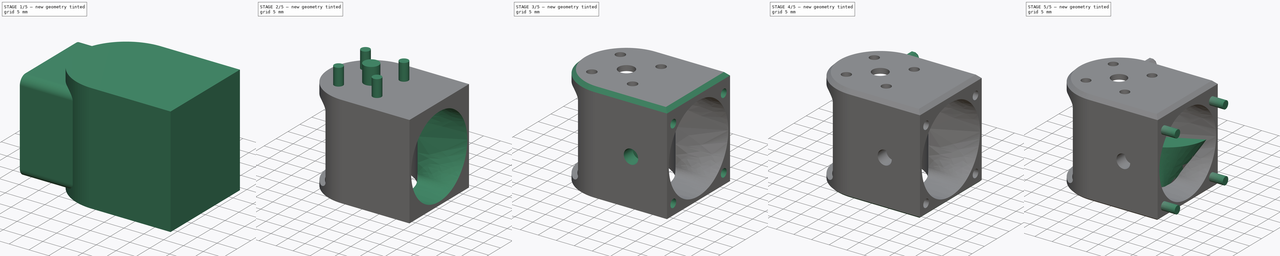
[diagram: build sequence overview — one tinted view per stage of 5, left to right]
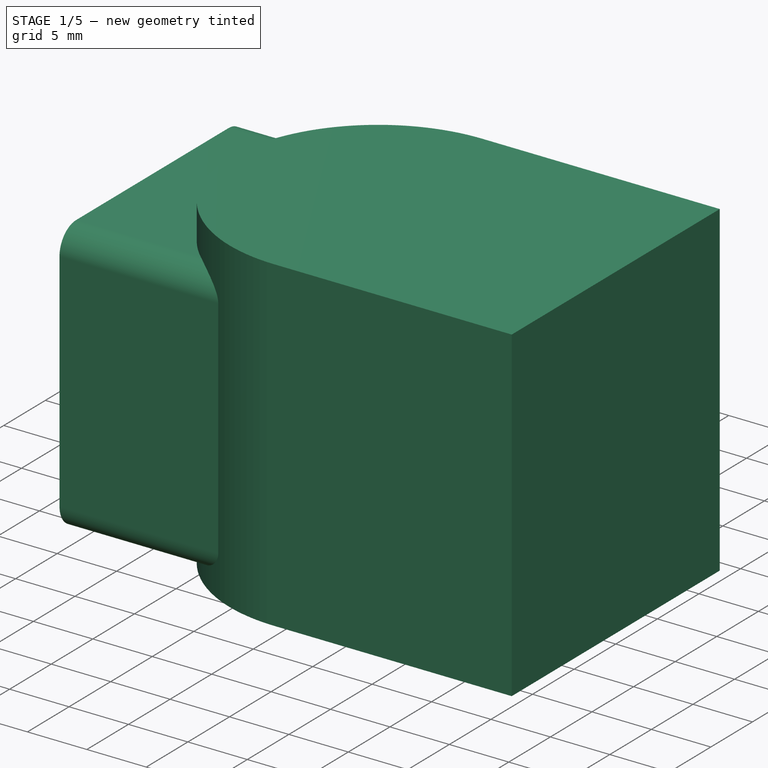
[diagram: stage 1 of 5 — iso view after this stage's code; geometry added in this stage tinted green]
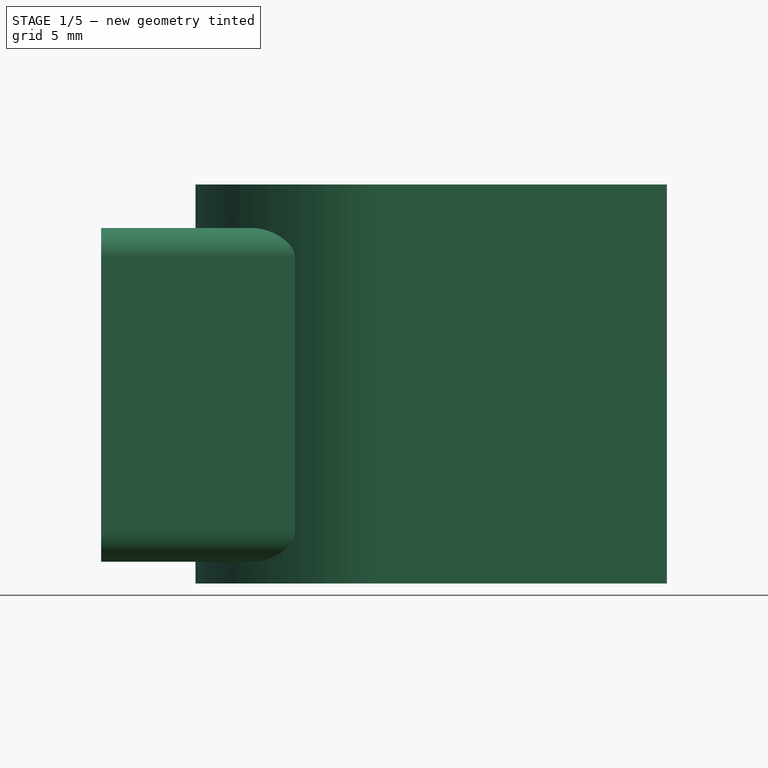
[diagram: stage 1 of 5 — front view after this stage's code; geometry added in this stage tinted green]
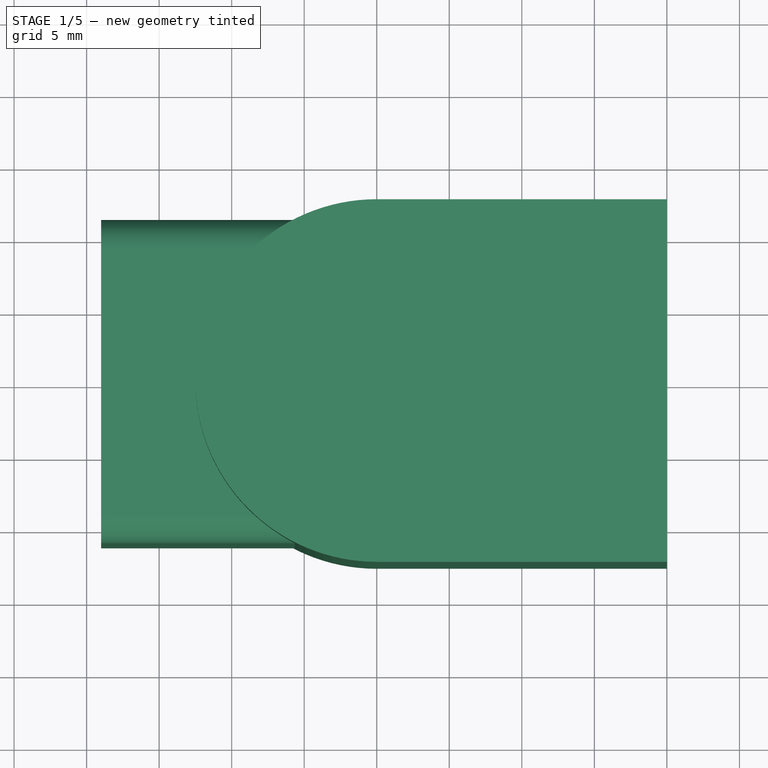
[diagram: stage 1 of 5 — top view after this stage's code; geometry added in this stage tinted green]
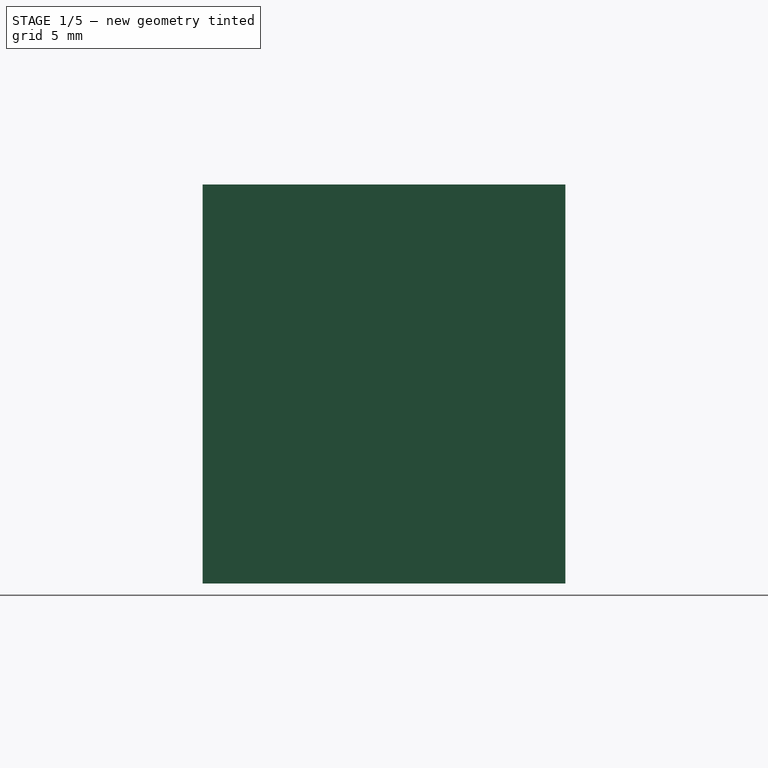
[diagram: stage 1 of 5 — right view after this stage's code; geometry added in this stage tinted green]
FCSTD DOCUMENT  (FreeCAD 0.18R16146 (Git))
Label: dragon-2510-adapter
License: All rights reserved
LicenseURL: http://en.wikipedia.org/wiki/All_rights_reserved
objects: Part::Cylinder×14, Part::Feature×6, Part::Cut×6, Part::MultiFuse×5, Part::Chamfer×4, Part::Box×3, Sketcher::SketchObject×2, PartDesign::AdditiveLoft×1, PartDesign::Body×1, Part::Fillet×1
note: 44 computed .brp shape members not serialized (recipe doc carries the construction recipe); baked Part::Feature solids carry a one-line shape summary decoded from their .brp

FEATURE [Part::Cylinder] Cylinder
  Angle = 360
  AttacherType = Attacher::AttachEngine3D
  Height = 27.5
  Radius = 12.5
FEATURE [Sketcher::SketchObject] Sketch
  MapMode = 5
  Support = -> [XY_Plane]
  sketch-geometry (12):
    g0: LineSegment [constr] StartX=0 StartY=0 StartZ=0 EndX=12 EndY=0 EndZ=0
    g1: LineSegment [constr] StartX=12 StartY=0 StartZ=0 EndX=12 EndY=23 EndZ=0
    g2: LineSegment [constr] StartX=12 StartY=23 StartZ=0 EndX=0 EndY=23 EndZ=0
    g3: LineSegment [constr] StartX=0 StartY=23 StartZ=0 EndX=0 EndY=0 EndZ=0
    g4: ArcOfCircle CenterX=2.01222 CenterY=21.0274 CenterZ=0 NormalX=0 NormalY=0 NormalZ=1 AngleXU=0 Radius=1.97307 StartAngle=1.57699 EndAngle=3.15549
    g5: ArcOfCircle CenterX=10.0122 CenterY=21.0018 CenterZ=0 NormalX=0 NormalY=0 NormalZ=1 AngleXU=0 Radius=2 StartAngle=6.28228 EndAngle=7.86009
    g6: ArcOfCircle CenterX=2 CenterY=2.02741 CenterZ=0 NormalX=0 NormalY=0 NormalZ=1 AngleXU=0 Radius=2 StartAngle=3.30087 EndAngle=4.64363
    g7: ArcOfCircle CenterX=10 CenterY=2.00181 CenterZ=0 NormalX=0 NormalY=0 NormalZ=1 AngleXU=0 Radius=2 StartAngle=4.64363 EndAngle=6.28228
    g8: LineSegment StartX=2 StartY=23.0004 StartZ=0 EndX=10 EndY=23.0018 EndZ=0
    g9: LineSegment StartX=0.0393357 StartY=21 StartZ=0 EndX=0.0253145 EndY=1.71021 EndZ=0
    g10: LineSegment StartX=1.86259 StartY=0.0321397 StartZ=0 EndX=9.86259 EndY=0.00654089 EndZ=0
    g11: LineSegment StartX=12 StartY=2 StartZ=0 EndX=12.0122 EndY=21 EndZ=0
  constraints (25):
    c: Coincident(g0,g1)
    c: Coincident(g1,g2)
    c: Coincident(g2,g3)
    c: Coincident(g3,g0)
    c: Horizontal(g0)
    c: Horizontal(g2)
    c: Vertical(g1)
    c: Vertical(g3)
    c: DistanceX(g4,g5) = 8
    c: DistanceY(g6,g4) = 19
    c: DistanceX(g-1,g6) = 2
    c: DistanceX(g6,g7) = 8
    c: DistanceY(g7,g5) = 19
    c: Coincident(g4,g8)
    c: Coincident(g8,g5)
    c: Coincident(g4,g9)
    c: Coincident(g9,g6)
    c: Coincident(g10,g6)
    c: Coincident(g10,g7)
    c: Coincident(g11,g7)
    c: Coincident(g5,g11)
    c: Radius(g5) = 2
    c: Radius(g6) = 2
    c: Radius(g7) = 2
    c: DistanceX(g6,g7) = 8
FEATURE [Sketcher::SketchObject] Sketch001
  AttachmentOffset = pos=(0,0,12) rot=(0,0,1;0rad)
  MapMode = 5
  Placement = pos=(0,0,12) rot=(0,0,1;0rad)
  Support = -> [XY_Plane]
  sketch-geometry (3):
    g0: LineSegment [constr] StartX=0 StartY=21 StartZ=0 EndX=14 EndY=2 EndZ=0
    g1: LineSegment [constr] StartX=0 StartY=2 StartZ=0 EndX=14 EndY=21 EndZ=0
    g2: Circle CenterX=6 CenterY=11.5 CenterZ=0 NormalX=0 NormalY=0 NormalZ=1 AngleXU=0 Radius=12
  constraints (1):
    c: DistanceX(g-1,g2) = 6
FEATURE [Part::Cylinder] Cylinder001
  Angle = 360
  AttacherType = Attacher::AttachEngine3D
  Height = 26
  Radius = 11.15
FEATURE [Part::Box] Box  label="Cube"
  AttacherType = Attacher::AttachEngine3D
  Height = 27.5
  Length = 20
  Placement = pos=(0,-12.5,0) rot=(0,0,1;0rad)
  Width = 25
FEATURE [Part::Box] Box001  label="Cube001"
  AttacherType = Attacher::AttachEngine3D
  Height = 23
  Length = 19
  Placement = pos=(-19,-11.15,1.5) rot=(0,0,1;0rad)
  Width = 22.3
FEATURE [PartDesign::Body] Body
  Group = -> [Sketch,Sketch001,AdditiveLoft]
  Origin = -> Origin
  Tip = -> AdditiveLoft
FEATURE [Part::Feature] Body001001  label="Body002"
  Placement = pos=(8.4,-3e-15,13) rot=(0.57735,0.57735,0.57735;2.0944rad)
  shape: bbox 12 x 24.72 x 24.27 mm, 11 faces (baked)
FEATURE [Part::Feature] Cut001002  label="Cut003004"
  shape: bbox 20.4 x 25.22 x 27.5 mm, 16 faces (baked)
FEATURE [Part::MultiFuse] Fusion
  Shapes = -> [Cylinder,Box]
FEATURE [Part::Cut] Cut
  Base = -> Fusion
  Tool = -> Cylinder001
FEATURE [Part::Feature] Fusion036012039011002025018003  label="_dragon-hotend-pref"
  Placement = pos=(0,0,-19.5) rot=(0.57735,0.57735,0.57735;2.0944rad)
  shape: bbox 22.21 x 26.11 x 45.51 mm, 390 faces, 3 solids (baked)
FEATURE [Part::Fillet] Fillet
  Base = -> Box001
  Edges = 4 edges r=2: [Edge9,Edge10,Edge11,Edge12]
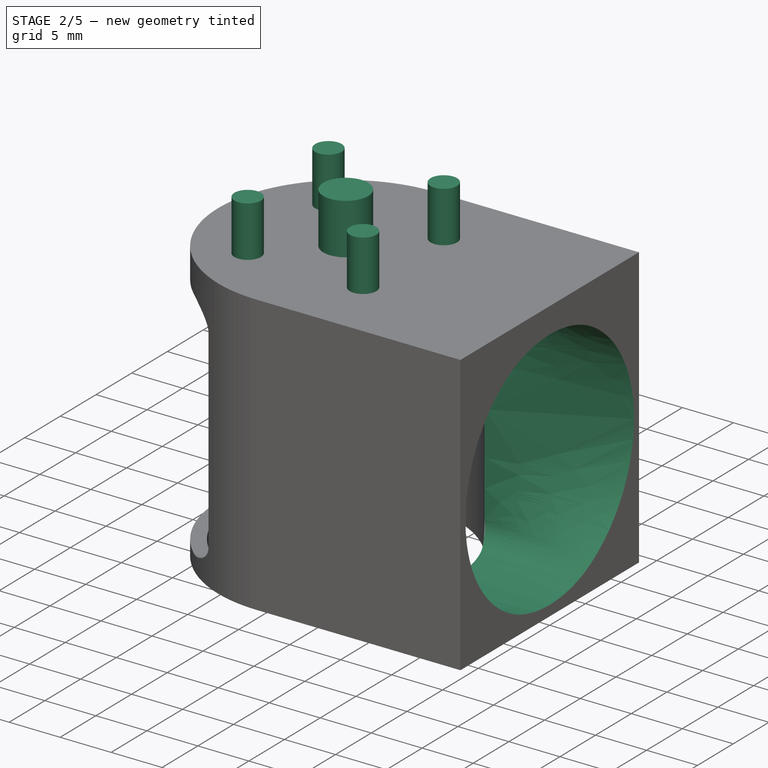
[diagram: stage 2 of 5 — iso view after this stage's code; geometry added in this stage tinted green]
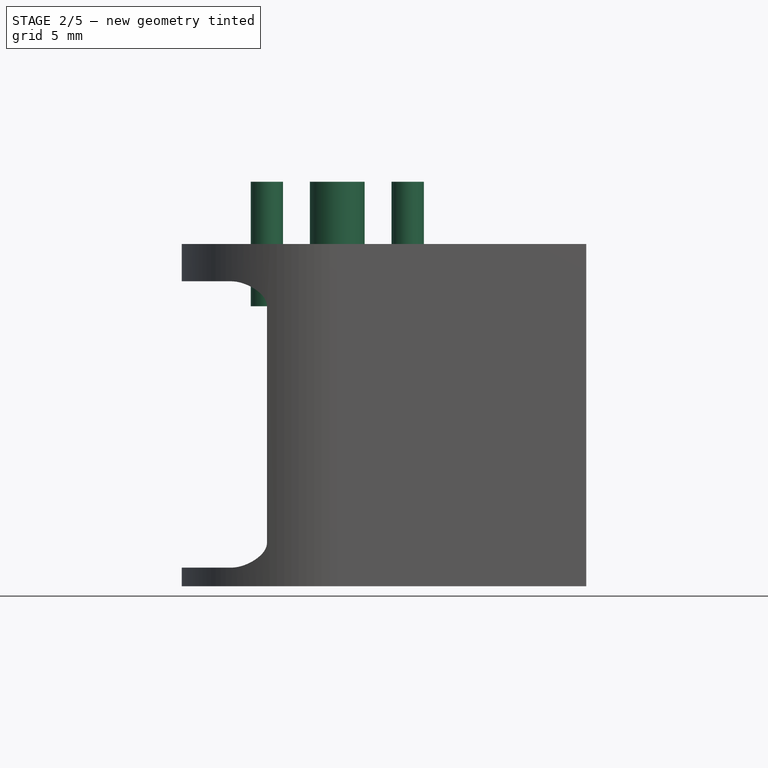
[diagram: stage 2 of 5 — front view after this stage's code; geometry added in this stage tinted green]
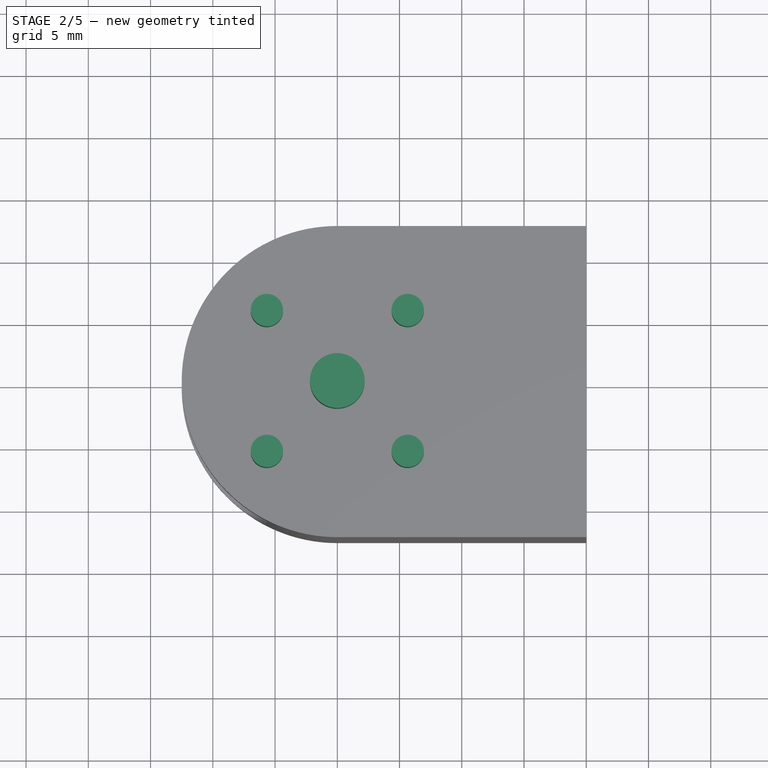
[diagram: stage 2 of 5 — top view after this stage's code; geometry added in this stage tinted green]
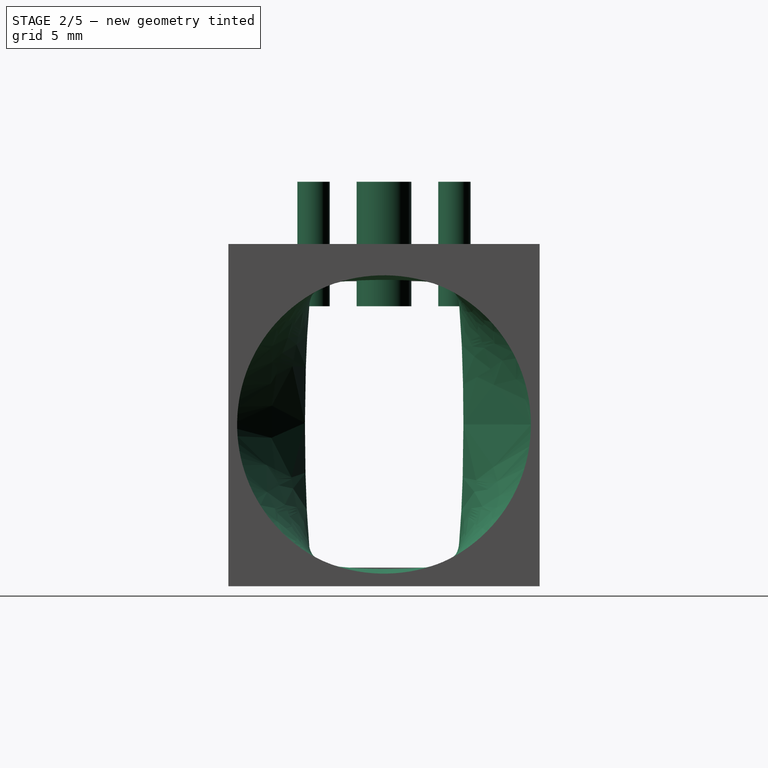
[diagram: stage 2 of 5 — right view after this stage's code; geometry added in this stage tinted green]
FEATURE [Part::Cut] Cut001003
  Base = -> Cut
  Tool = -> Body001001
FEATURE [Part::Cylinder] Cylinder008
  Angle = 360
  AttacherType = Attacher::AttachEngine3D
  Height = 10
  Placement = pos=(0,0,22.5) rot=(0,0,1;0rad)
  Radius = 2.2
FEATURE [Part::Cylinder] Cylinder009
  Angle = 360
  AttacherType = Attacher::AttachEngine3D
  Height = 10
  Placement = pos=(-5.65685,5.65685,22.5) rot=(0,0,-1;0.785398rad)
  Radius = 1.3
FEATURE [Part::Cylinder] Cylinder010
  Angle = 360
  AttacherType = Attacher::AttachEngine3D
  Height = 10
  Placement = pos=(5.65685,5.65685,22.5) rot=(0,0,-1;0.785398rad)
  Radius = 1.3
FEATURE [Part::Cylinder] Cylinder011
  Angle = 360
  AttacherType = Attacher::AttachEngine3D
  Height = 10
  Placement = pos=(-5.65685,-5.65685,22.5) rot=(0,0,-1;0.785398rad)
  Radius = 1.3
FEATURE [Part::Cylinder] Cylinder012
  Angle = 360
  AttacherType = Attacher::AttachEngine3D
  Height = 10
  Placement = pos=(5.65685,-5.65685,22.5) rot=(0,0,-1;0.785398rad)
  Radius = 1.3
FEATURE [Part::Cut] Cut001007002
  Base = -> Cut001003
  Tool = -> Fillet
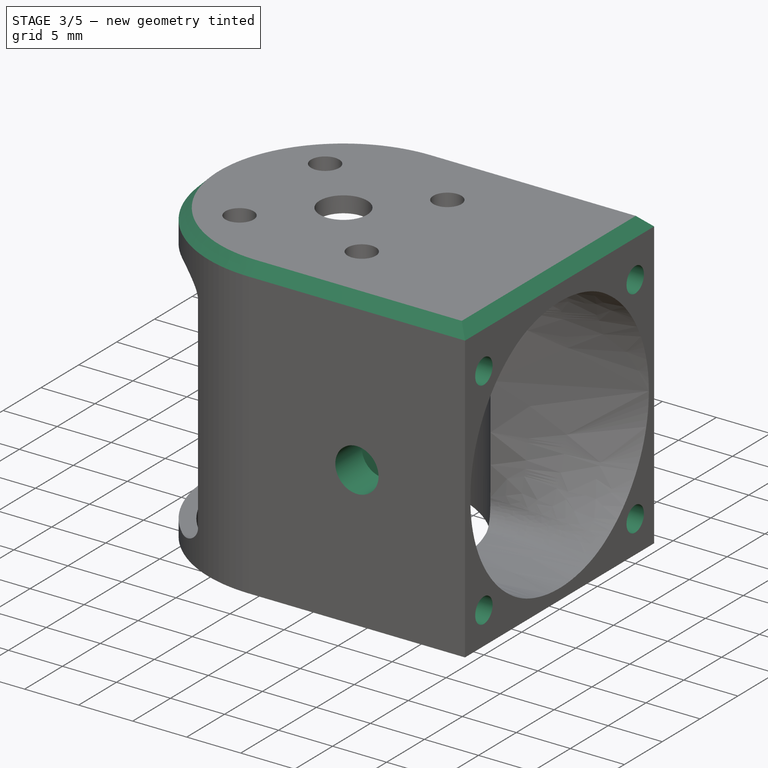
[diagram: stage 3 of 5 — iso view after this stage's code; geometry added in this stage tinted green]
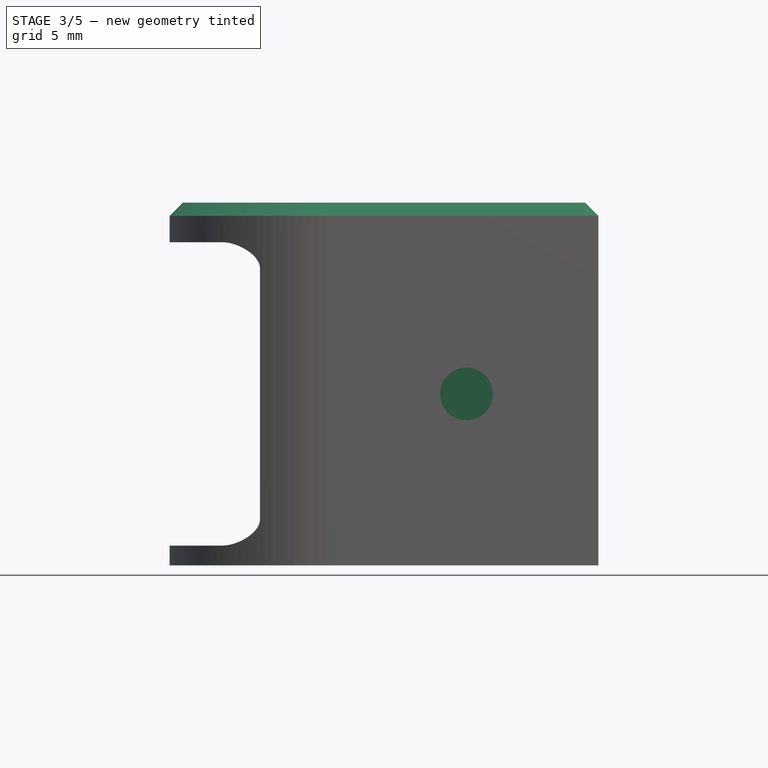
[diagram: stage 3 of 5 — front view after this stage's code; geometry added in this stage tinted green]
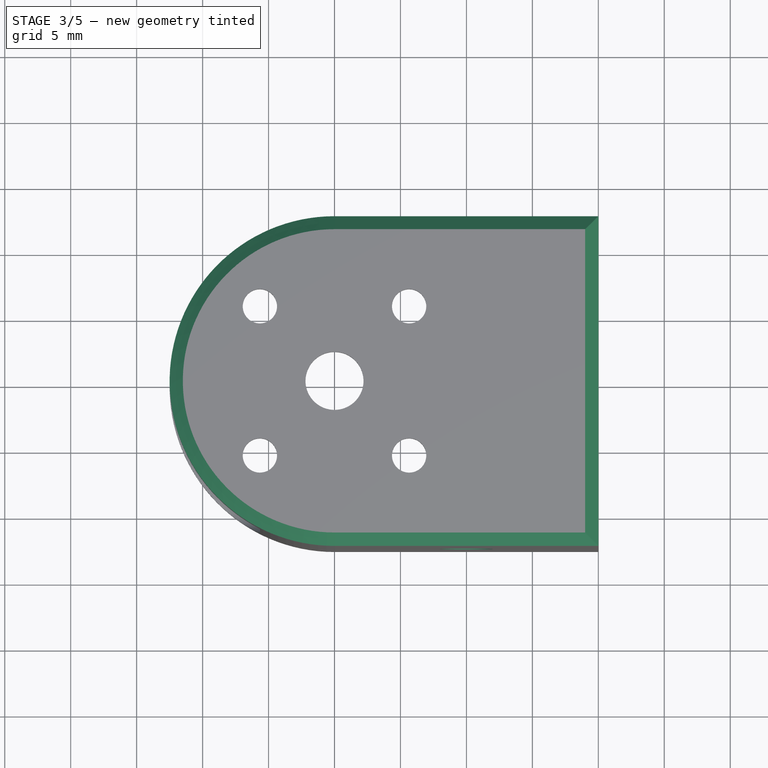
[diagram: stage 3 of 5 — top view after this stage's code; geometry added in this stage tinted green]
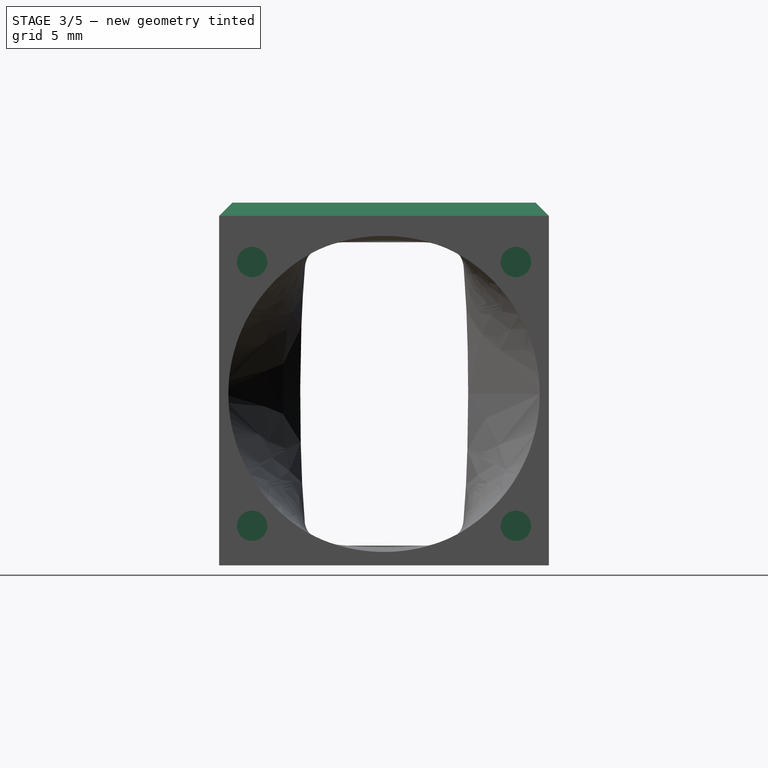
[diagram: stage 3 of 5 — right view after this stage's code; geometry added in this stage tinted green]
FEATURE [Part::MultiFuse] Fusion001004
  Shapes = -> [Cylinder012,Cylinder011,Cylinder010,Cylinder009,Cylinder008]
FEATURE [Part::Cylinder] Cylinder013
  Angle = 360
  AttacherType = Attacher::AttachEngine3D
  Height = 10
  Placement = pos=(10,-19,13) rot=(-1,0,0;1.5708rad)
  Radius = 2
FEATURE [Part::Cut] Cut001007003
  Base = -> Cut001007002
  Tool = -> Fusion001004
FEATURE [Part::Cut] Cut001007004
  Base = -> Cut001007003
  Tool = -> Fusion001001
FEATURE [Part::Cut] Cut001007005
  Base = -> Cut001007004
  Tool = -> Cylinder013
FEATURE [Part::Chamfer] Chamfer
  Base = -> Cut001007005
  Edges = 4 edges r=1: [Edge34,Edge77,Edge79,Edge84]
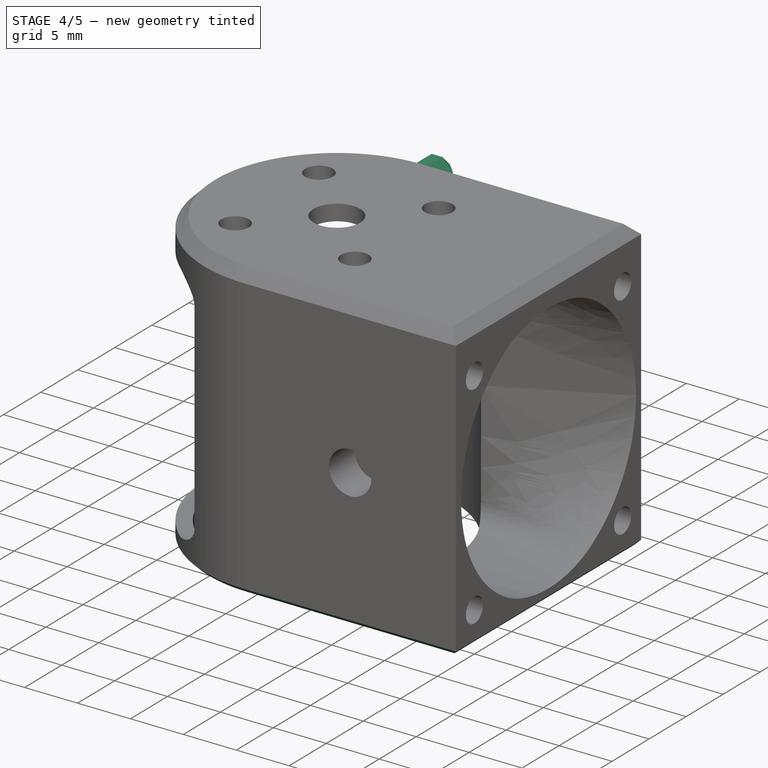
[diagram: stage 4 of 5 — iso view after this stage's code; geometry added in this stage tinted green]
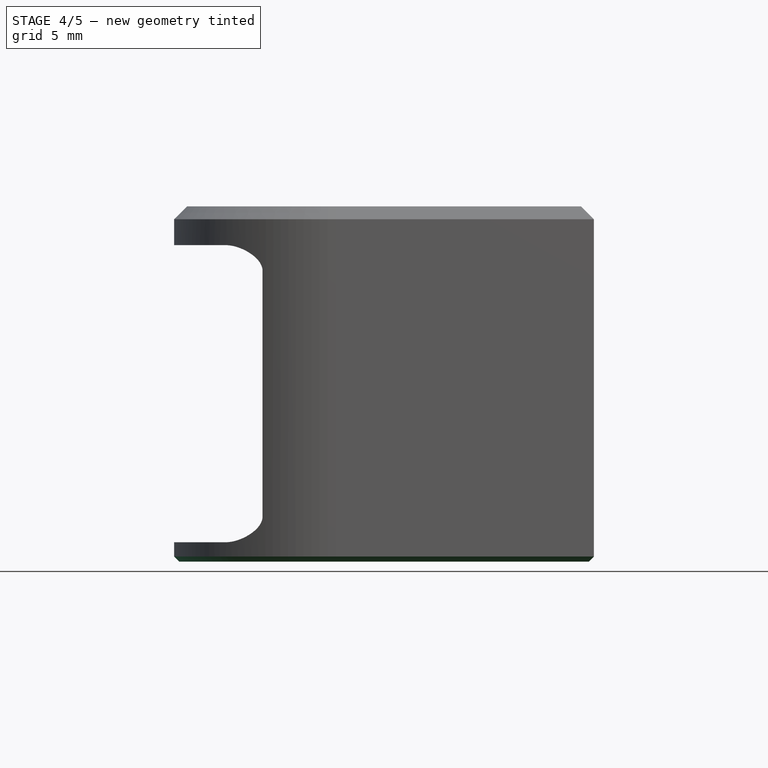
[diagram: stage 4 of 5 — front view after this stage's code; geometry added in this stage tinted green]
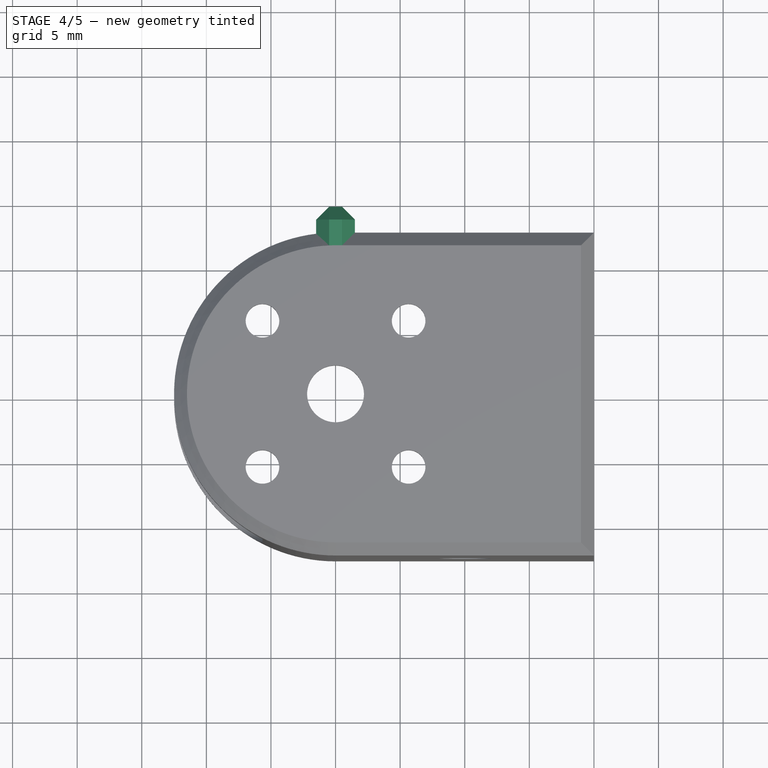
[diagram: stage 4 of 5 — top view after this stage's code; geometry added in this stage tinted green]
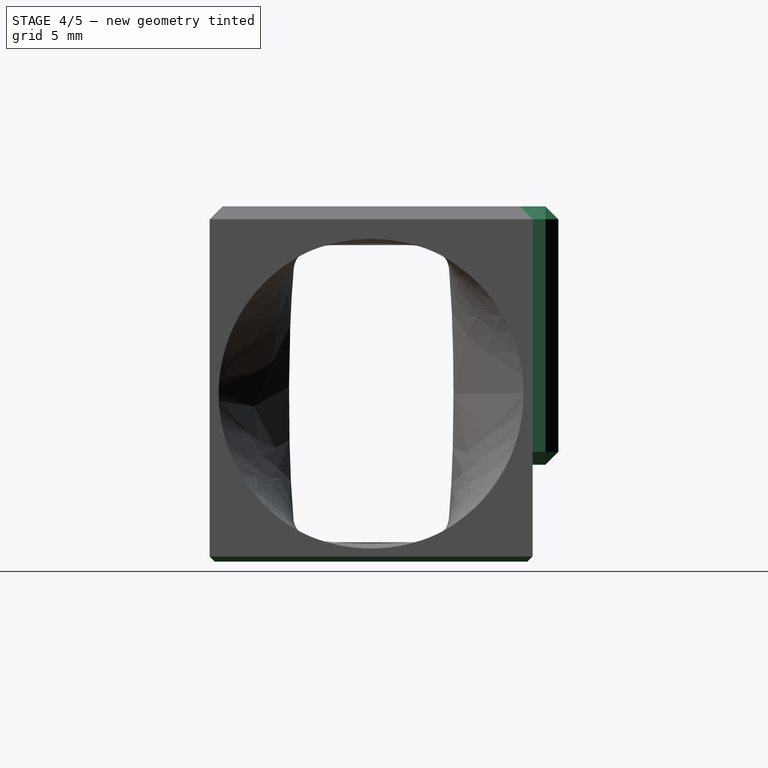
[diagram: stage 4 of 5 — right view after this stage's code; geometry added in this stage tinted green]
FEATURE [Part::Cylinder] Cylinder006
  Angle = 360
  AttacherType = Attacher::AttachEngine3D
  Height = 1
  Placement = pos=(-5.5,0,25) rot=(0,0,1;0rad)
  Radius = 1.2
FEATURE [Part::Cylinder] Cylinder007
  Angle = 360
  AttacherType = Attacher::AttachEngine3D
  Height = 1
  Placement = pos=(5.5,0,25) rot=(0,0,1;0rad)
  Radius = 1.2
FEATURE [Part::MultiFuse] Fusion001005
  Shapes = -> [Cylinder007,Cylinder006]
FEATURE [Part::Feature] Cut001007001  label="Cut003005"
  shape: bbox 32.9 x 25.22 x 27.5 mm, 56 faces (baked)
FEATURE [Part::Box] Box003  label="Cube003"
  AttacherType = Attacher::AttachEngine3D
  Height = 20
  Length = 3
  Placement = pos=(-1.5,11.3,7.5) rot=(0,0,1;0rad)
  Width = 3.2
FEATURE [Part::Chamfer] Chamfer005
  Base = -> Box003
  Edges = 8 edges r=1: [Edge2,Edge3,Edge4,Edge6,Edge7,Edge8,Edge11,Edge12]
FEATURE [Part::Chamfer] Chamfer006
  Base = -> Chamfer
  Edges = 4 edges r=0.4: [Edge3,Edge15,Edge25,Edge45]
FEATURE [Part::MultiFuse] Fusion036012039011002025018004
  Shapes = -> [Chamfer006,Chamfer005]
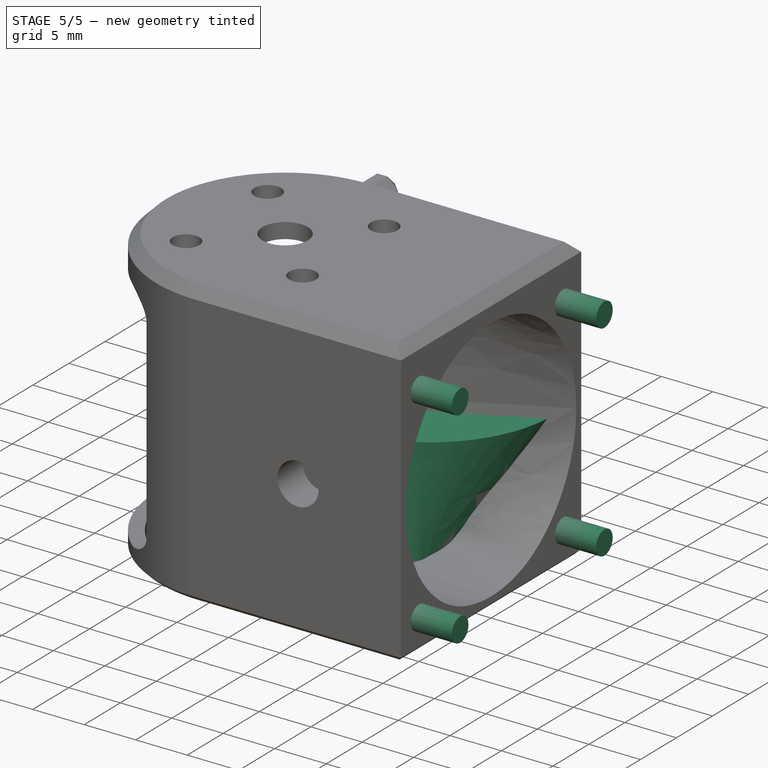
[diagram: stage 5 of 5 — iso view after this stage's code; geometry added in this stage tinted green]
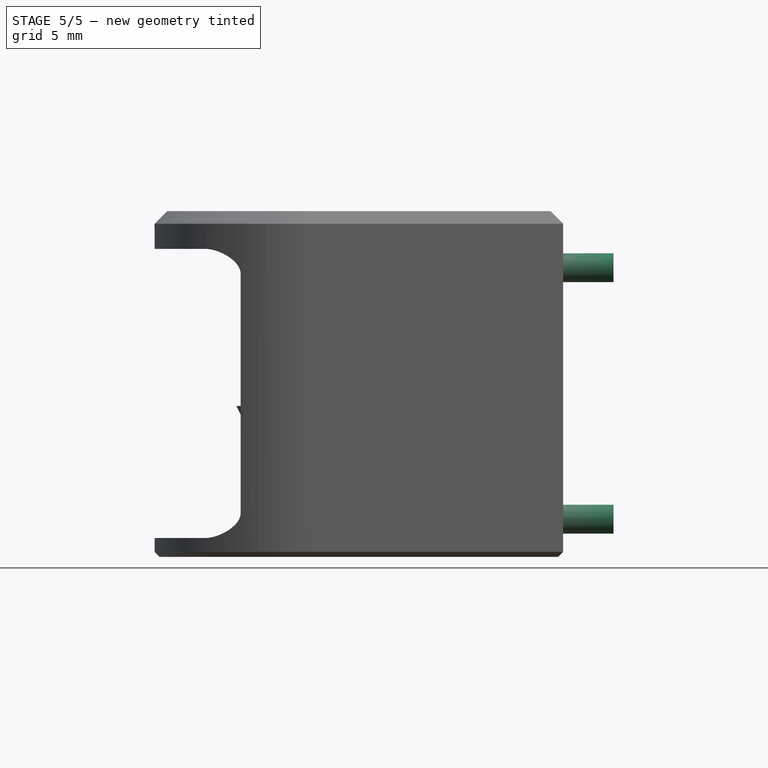
[diagram: stage 5 of 5 — front view after this stage's code; geometry added in this stage tinted green]
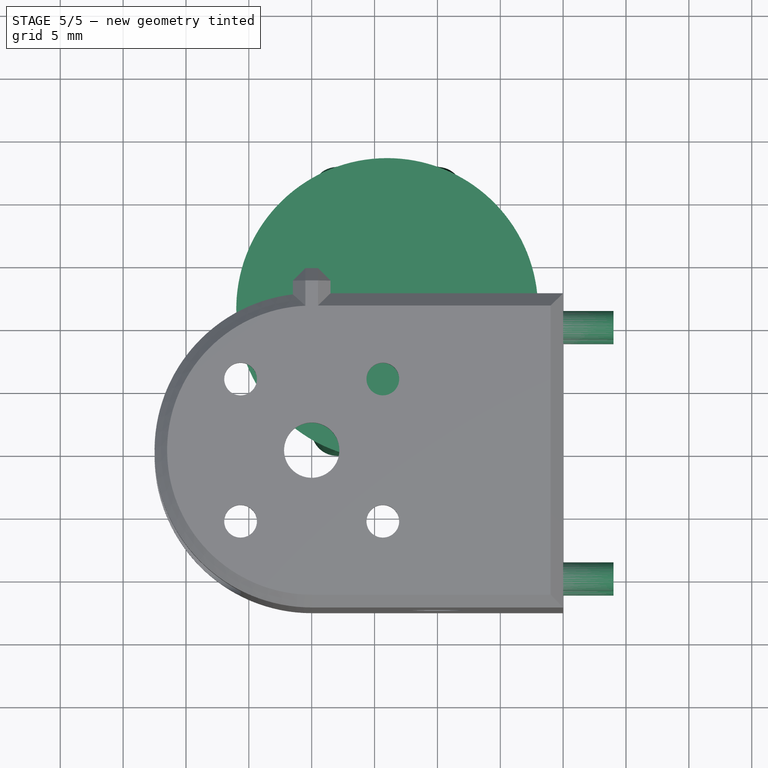
[diagram: stage 5 of 5 — top view after this stage's code; geometry added in this stage tinted green]
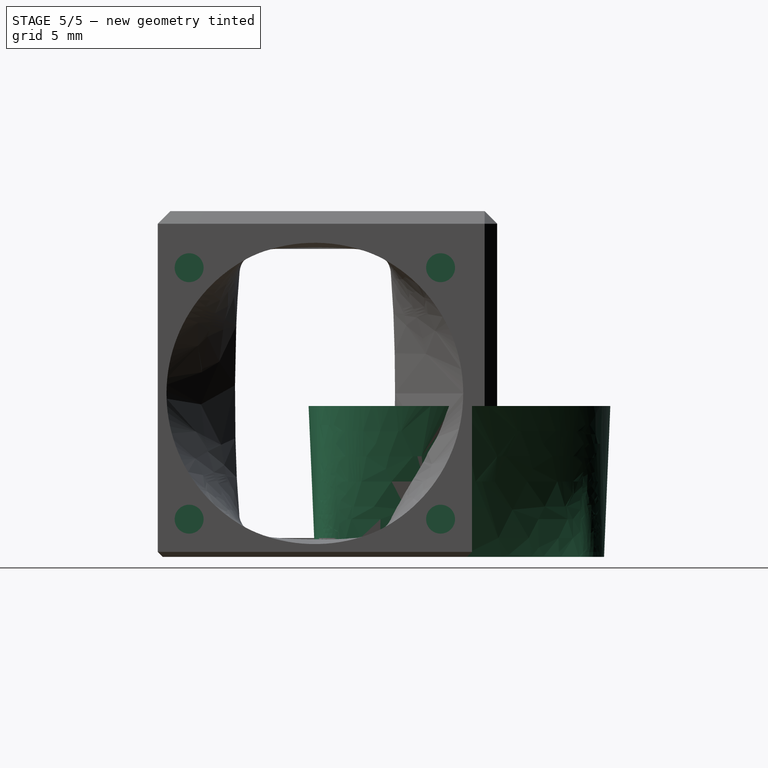
[diagram: stage 5 of 5 — right view after this stage's code; geometry added in this stage tinted green]
FEATURE [Part::Cylinder] Cylinder002
  Angle = 360
  AttacherType = Attacher::AttachEngine3D
  Height = 10
  Placement = pos=(14,10,23) rot=(0,1,0;1.5708rad)
  Radius = 1.15
FEATURE [Part::Cylinder] Cylinder003
  Angle = 360
  AttacherType = Attacher::AttachEngine3D
  Height = 10
  Placement = pos=(14,-10,23) rot=(0,1,0;1.5708rad)
  Radius = 1.15
FEATURE [Part::Cylinder] Cylinder004
  Angle = 360
  AttacherType = Attacher::AttachEngine3D
  Height = 10
  Placement = pos=(14,10,3) rot=(0,1,0;1.5708rad)
  Radius = 1.15
FEATURE [Part::Cylinder] Cylinder005
  Angle = 360
  AttacherType = Attacher::AttachEngine3D
  Height = 10
  Placement = pos=(14,-10,3) rot=(0,1,0;1.5708rad)
  Radius = 1.15
FEATURE [Part::MultiFuse] Fusion001
  Shapes = -> [Cylinder005,Cylinder004,Cylinder003,Cylinder002]
FEATURE [Part::Feature] Cut001001  label="Cut003003"
  shape: bbox 31.5 x 25 x 27.5 mm, 16 faces (baked)
FEATURE [Part::Feature] Fusion001001  label="Fusion002"
  shape: bbox 10 x 22.3 x 22.3 mm, 12 faces, 4 solids (baked)
FEATURE [PartDesign::AdditiveLoft] AdditiveLoft
  Closed = false
  Profile = -> Sketch001
  Ruled = true
  Sections = -> [Sketch]
FEATURE [Part::Chamfer] Chamfer002
  Base = -> Fusion001005
  Edges = 2 edges r=0.4: [Edge3,Edge6]
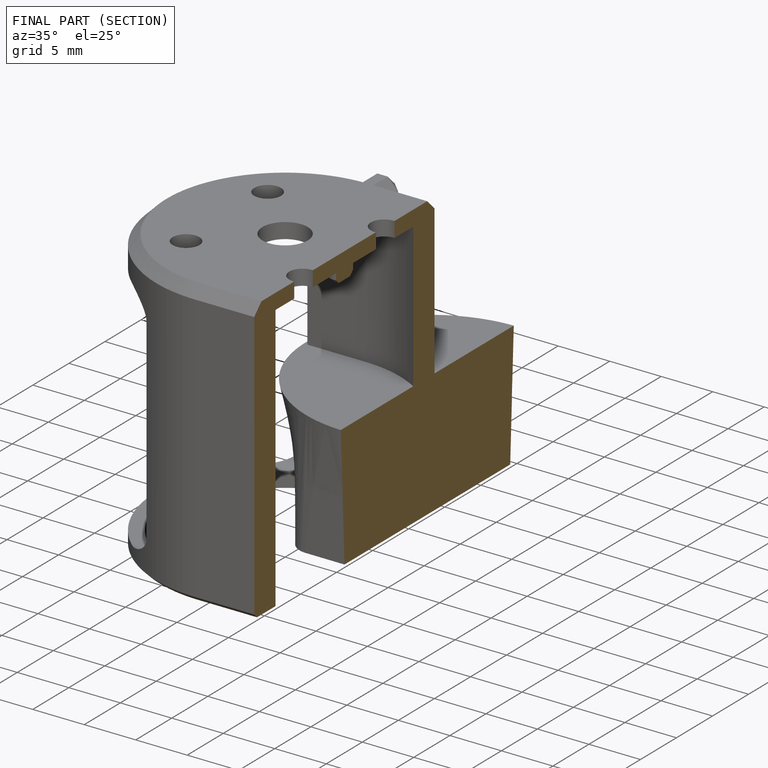
[diagram: finished part — half-section view (interior)]
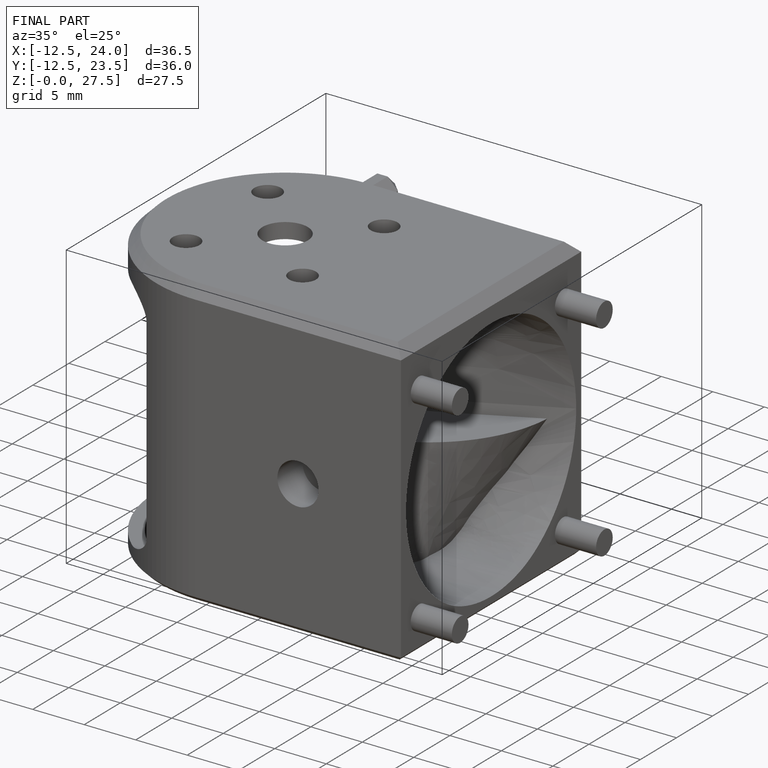
[diagram: finished part — iso view with bounding-box wireframe]
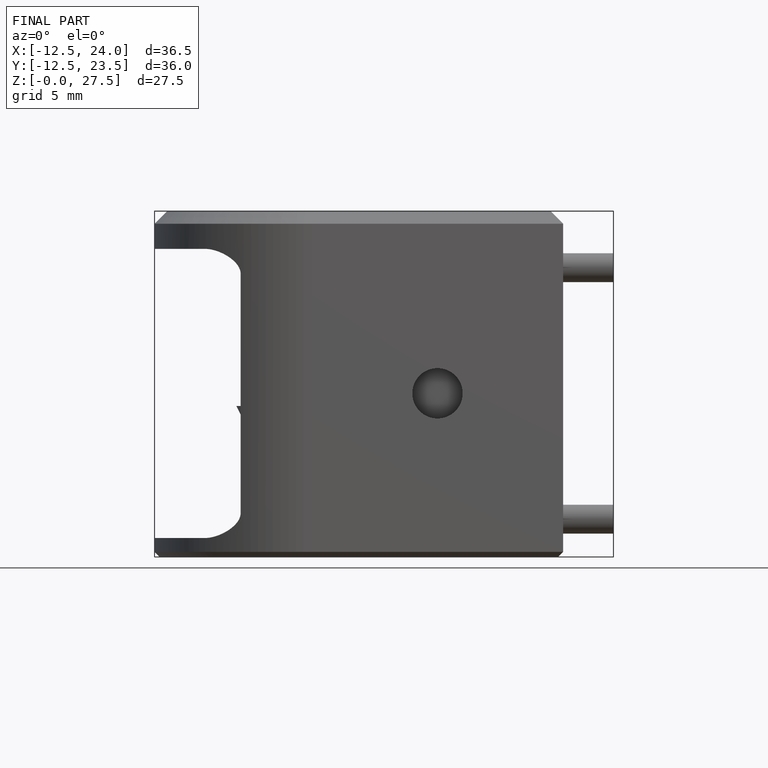
[diagram: finished part — front view with bounding-box wireframe]
